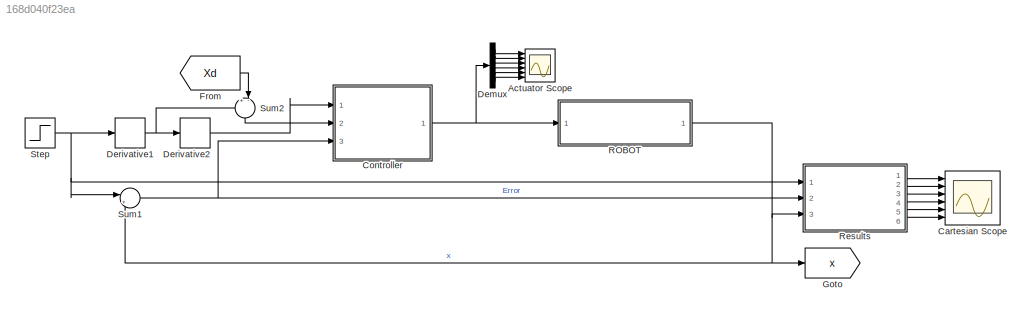
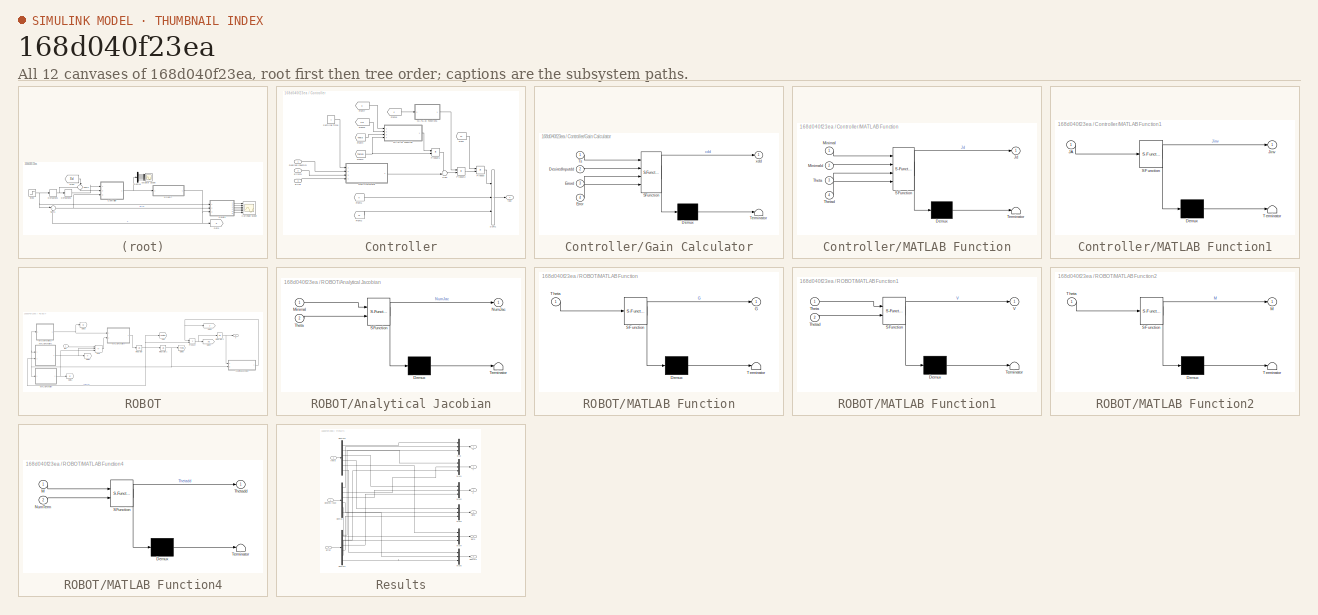
[diagram: thumbnail index - all 12 canvases of the model, root first then tree order]
MODEL slx_168d040f23ea
KIND model
CONFIG AbsTol = auto
CONFIG EnableMultiTasking = off
CONFIG FixedStep = auto
CONFIG MaxStep = auto
CONFIG MinStep = auto
CONFIG RelTol = 1e-3
CONFIG SampleTimeConstraint = Unconstrained
CONFIG SolverName = VariableStepAuto
CONFIG StartTime = 0.0
CONFIG StopTime = 10.0
BLOCK [Scope] Actuator Scope
  Floating = off
  NumInputPorts = 6
  Ports = [6]
  ScopeSpecificationString = Simulink.scopes.TimeScopeBlockCfg('CurrentConfiguration', extmgr.ConfigurationSet(extmgr.Configuration('Core','General UI',true),extmgr.Configuration('Core','Source UI',true),extmgr.Configuration('Sources','WiredSimulink',true,'DataLoggingVariableName','ScopeData1'),extmgr.Configuration('Visuals','Time Domain',true,'SerializedDisplays',{struct('MinYLimReal','-8238315.85207','MaxYLimReal','1984857....<+4950ch>
BLOCK [Scope] Cartesian Scope
  Floating = off
  NumInputPorts = 6
  Ports = [6]
  ScopeSpecificationString = Simulink.scopes.TimeScopeBlockCfg('CurrentConfiguration', extmgr.ConfigurationSet(extmgr.Configuration('Core','General UI',true),extmgr.Configuration('Core','Source UI',true),extmgr.Configuration('Sources','WiredSimulink',true),extmgr.Configuration('Visuals','Time Domain',true,'SerializedDisplays',{struct('MinYLimReal','-1.49443','MaxYLimReal','2.69443','YLabelReal','','MinYLimMag','0.00000','MaxY...<+4908ch>
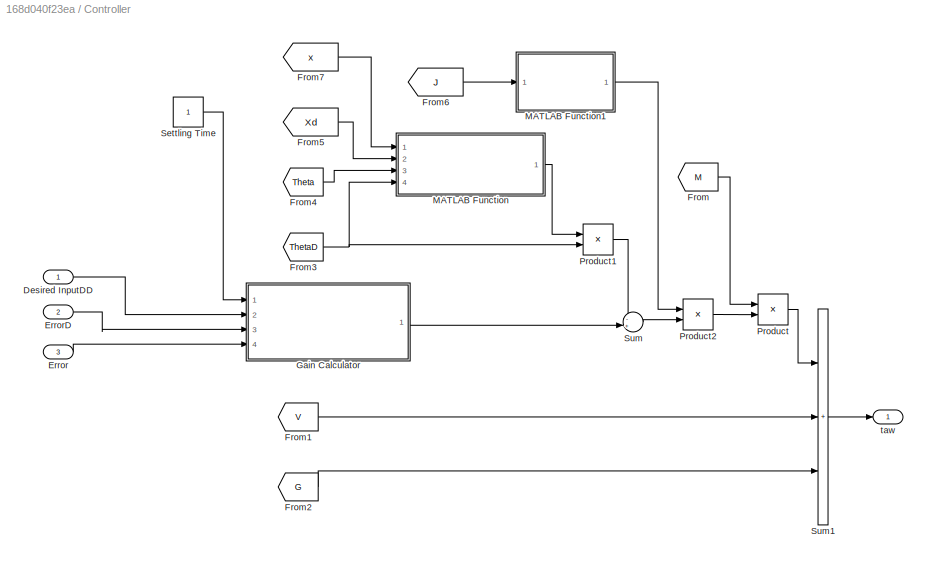
BLOCK [SubSystem] Controller
  Ports = [3, 1]
  RequestExecContextInheritance = off
BLOCK [Inport] Controller/Desired InputDD
BLOCK [Inport] Controller/Error
  Port = 3
BLOCK [Inport] Controller/ErrorD
  Port = 2
BLOCK [From] Controller/From
  GotoTag = M
  TagVisibility = global
BLOCK [From] Controller/From1
  GotoTag = V
  TagVisibility = global
BLOCK [From] Controller/From2
  GotoTag = G
  TagVisibility = global
BLOCK [From] Controller/From3
  GotoTag = ThetaD
  TagVisibility = global
BLOCK [From] Controller/From4
  GotoTag = Theta
  TagVisibility = global
BLOCK [From] Controller/From5
  GotoTag = Xd
  TagVisibility = global
BLOCK [From] Controller/From6
  GotoTag = J
  TagVisibility = global
BLOCK [From] Controller/From7
  GotoTag = x
  TagVisibility = global
BLOCK [SubSystem] Controller/Gain Calculator
  ErrorFcn = Stateflow.Translate.translate
  PermitHierarchicalResolution = ExplicitOnly
  Ports = [4, 1]
  RequestExecContextInheritance = off
  SFBlockType = MATLAB Function
  TreatAsAtomicUnit = on
BLOCK [Demux] Controller/Gain Calculator/ Demux 
  Outputs = 1
  Ports = [1, 1]
BLOCK [S-Function] Controller/Gain Calculator/ SFunction 
  EnableBusSupport = on
  FunctionName = sf_sfun
  PortCounts = [4 2]
  Ports = [4, 2]
  SFcnIsStateOwnerBlock = off
  SFunctionDeploymentMode = off
  Tag = Stateflow S-Function 9
BLOCK [Terminator] Controller/Gain Calculator/ Terminator 
BLOCK [Inport] Controller/Gain Calculator/DesiredInputdd
  Port = 2
BLOCK [Inport] Controller/Gain Calculator/Error
  Port = 4
BLOCK [Inport] Controller/Gain Calculator/Errord
  Port = 3
BLOCK [Inport] Controller/Gain Calculator/Ts
BLOCK [Outport] Controller/Gain Calculator/xdd
  VectorParamsAs1DForOutWhenUnconnected = off
BLOCK [SubSystem] Controller/MATLAB Function
  ErrorFcn = Stateflow.Translate.translate
  PermitHierarchicalResolution = ExplicitOnly
  Ports = [4, 1]
  RequestExecContextInheritance = off
  SFBlockType = MATLAB Function
  TreatAsAtomicUnit = on
BLOCK [Demux] Controller/MATLAB Function/ Demux 
  Outputs = 1
  Ports = [1, 1]
BLOCK [S-Function] Controller/MATLAB Function/ SFunction 
  EnableBusSupport = on
  FunctionName = sf_sfun
  PortCounts = [4 2]
  Ports = [4, 2]
  SFcnIsStateOwnerBlock = off
  SFunctionDeploymentMode = off
  Tag = Stateflow S-Function 7
BLOCK [Terminator] Controller/MATLAB Function/ Terminator 
BLOCK [Outport] Controller/MATLAB Function/Jd
  VectorParamsAs1DForOutWhenUnconnected = off
BLOCK [Inport] Controller/MATLAB Function/Minimal
BLOCK [Inport] Controller/MATLAB Function/Minimald
  Port = 2
BLOCK [Inport] Controller/MATLAB Function/Theta
  Port = 3
BLOCK [Inport] Controller/MATLAB Function/Thetad
  Port = 4
BLOCK [SubSystem] Controller/MATLAB Function1
  ErrorFcn = Stateflow.Translate.translate
  PermitHierarchicalResolution = ExplicitOnly
  Ports = [1, 1]
  RequestExecContextInheritance = off
  SFBlockType = MATLAB Function
  TreatAsAtomicUnit = on
BLOCK [Demux] Controller/MATLAB Function1/ Demux 
  Outputs = 1
  Ports = [1, 1]
BLOCK [S-Function] Controller/MATLAB Function1/ SFunction 
  EnableBusSupport = on
  FunctionName = sf_sfun
  PortCounts = [1 2]
  Ports = [1, 2]
  SFcnIsStateOwnerBlock = off
  SFunctionDeploymentMode = off
  Tag = Stateflow S-Function 8
BLOCK [Terminator] Controller/MATLAB Function1/ Terminator 
BLOCK [Inport] Controller/MATLAB Function1/JA
BLOCK [Outport] Controller/MATLAB Function1/Jinv
  VectorParamsAs1DForOutWhenUnconnected = off
BLOCK [Product] Controller/Product
  Multiplication = Matrix(*)
  Ports = [2, 1]
BLOCK [Product] Controller/Product1
  Multiplication = Matrix(*)
  Ports = [2, 1]
BLOCK [Product] Controller/Product2
  Multiplication = Matrix(*)
  Ports = [2, 1]
BLOCK [Constant] Controller/Settling Time
BLOCK [Sum] Controller/Sum
  Inputs = -+|
  Ports = [2, 1]
BLOCK [Sum] Controller/Sum1
  IconShape = rectangular
  Inputs = +++
  Ports = [3, 1]
BLOCK [Outport] Controller/taw
  VectorParamsAs1DForOutWhenUnconnected = off
BLOCK [Demux] Demux
  Outputs = 6
  Ports = [1, 6]
BLOCK [Derivative] Derivative1
BLOCK [Derivative] Derivative2
BLOCK [From] From
  GotoTag = Xd
  TagVisibility = global
BLOCK [Goto] Goto
  GotoTag = x
  TagVisibility = global
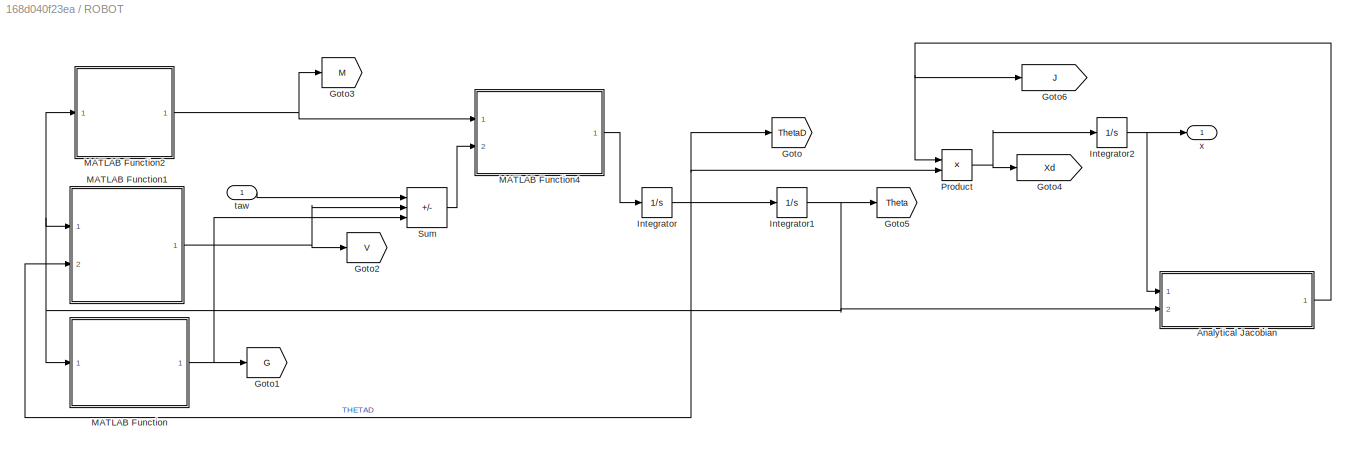
BLOCK [SubSystem] ROBOT
  Ports = [1, 1]
  RequestExecContextInheritance = off
BLOCK [SubSystem] ROBOT/Analytical Jacobian
  ErrorFcn = Stateflow.Translate.translate
  PermitHierarchicalResolution = ExplicitOnly
  Ports = [2, 1]
  RequestExecContextInheritance = off
  SFBlockType = MATLAB Function
  TreatAsAtomicUnit = on
BLOCK [Demux] ROBOT/Analytical Jacobian/ Demux 
  Outputs = 1
  Ports = [1, 1]
BLOCK [S-Function] ROBOT/Analytical Jacobian/ SFunction 
  EnableBusSupport = on
  FunctionName = sf_sfun
  PortCounts = [2 2]
  Ports = [2, 2]
  SFcnIsStateOwnerBlock = off
  SFunctionDeploymentMode = off
  Tag = Stateflow S-Function 6
BLOCK [Terminator] ROBOT/Analytical Jacobian/ Terminator 
BLOCK [Inport] ROBOT/Analytical Jacobian/Minimal
BLOCK [Outport] ROBOT/Analytical Jacobian/NumJac
  VectorParamsAs1DForOutWhenUnconnected = off
BLOCK [Inport] ROBOT/Analytical Jacobian/Theta
  Port = 2
BLOCK [Goto] ROBOT/Goto
  GotoTag = ThetaD
  TagVisibility = global
BLOCK [Goto] ROBOT/Goto1
  GotoTag = G
  TagVisibility = global
BLOCK [Goto] ROBOT/Goto2
  GotoTag = V
  TagVisibility = global
BLOCK [Goto] ROBOT/Goto3
  GotoTag = M
  TagVisibility = global
BLOCK [Goto] ROBOT/Goto4
  GotoTag = Xd
  TagVisibility = global
BLOCK [Goto] ROBOT/Goto5
  GotoTag = Theta
  TagVisibility = global
BLOCK [Goto] ROBOT/Goto6
  GotoTag = J
  TagVisibility = global
BLOCK [Integrator] ROBOT/Integrator
  InitialCondition = [0;0;0;0;0;0]
  Ports = [1, 1]
BLOCK [Integrator] ROBOT/Integrator1
  InitialCondition = [0.659733742734682;-0.837199398722719;1.88109465000067;2.99646726889027;1.04847657950238;0.858183852099329];
  Ports = [1, 1]
BLOCK [Integrator] ROBOT/Integrator2
  InitialCondition = [1.5;1.2;0.7;pi/4;pi/2;pi/4];
  Ports = [1, 1]
BLOCK [SubSystem] ROBOT/MATLAB Function
  ErrorFcn = Stateflow.Translate.translate
  PermitHierarchicalResolution = ExplicitOnly
  Ports = [1, 1]
  RequestExecContextInheritance = off
  SFBlockType = MATLAB Function
  TreatAsAtomicUnit = on
BLOCK [Demux] ROBOT/MATLAB Function/ Demux 
  Outputs = 1
  Ports = [1, 1]
BLOCK [S-Function] ROBOT/MATLAB Function/ SFunction 
  EnableBusSupport = on
  FunctionName = sf_sfun
  PortCounts = [1 2]
  Ports = [1, 2]
  SFcnIsStateOwnerBlock = off
  SFunctionDeploymentMode = off
  Tag = Stateflow S-Function 4
BLOCK [Terminator] ROBOT/MATLAB Function/ Terminator 
BLOCK [Outport] ROBOT/MATLAB Function/G
  VectorParamsAs1DForOutWhenUnconnected = off
BLOCK [Inport] ROBOT/MATLAB Function/Theta
BLOCK [SubSystem] ROBOT/MATLAB Function1
  ErrorFcn = Stateflow.Translate.translate
  PermitHierarchicalResolution = ExplicitOnly
  Ports = [2, 1]
  RequestExecContextInheritance = off
  SFBlockType = MATLAB Function
  TreatAsAtomicUnit = on
BLOCK [Demux] ROBOT/MATLAB Function1/ Demux 
  Outputs = 1
  Ports = [1, 1]
BLOCK [S-Function] ROBOT/MATLAB Function1/ SFunction 
  EnableBusSupport = on
  FunctionName = sf_sfun
  PortCounts = [2 2]
  Ports = [2, 2]
  SFcnIsStateOwnerBlock = off
  SFunctionDeploymentMode = off
  Tag = Stateflow S-Function 1
BLOCK [Terminator] ROBOT/MATLAB Function1/ Terminator 
BLOCK [Inport] ROBOT/MATLAB Function1/Theta
BLOCK [Inport] ROBOT/MATLAB Function1/Thetad
  Port = 2
BLOCK [Outport] ROBOT/MATLAB Function1/V
  VectorParamsAs1DForOutWhenUnconnected = off
BLOCK [SubSystem] ROBOT/MATLAB Function2
  ErrorFcn = Stateflow.Translate.translate
  PermitHierarchicalResolution = ExplicitOnly
  Ports = [1, 1]
  RequestExecContextInheritance = off
  SFBlockType = MATLAB Function
  TreatAsAtomicUnit = on
BLOCK [Demux] ROBOT/MATLAB Function2/ Demux 
  Outputs = 1
  Ports = [1, 1]
BLOCK [S-Function] ROBOT/MATLAB Function2/ SFunction 
  EnableBusSupport = on
  FunctionName = sf_sfun
  PortCounts = [1 2]
  Ports = [1, 2]
  SFcnIsStateOwnerBlock = off
  SFunctionDeploymentMode = off
  Tag = Stateflow S-Function 3
BLOCK [Terminator] ROBOT/MATLAB Function2/ Terminator 
BLOCK [Outport] ROBOT/MATLAB Function2/M
  VectorParamsAs1DForOutWhenUnconnected = off
BLOCK [Inport] ROBOT/MATLAB Function2/Theta
BLOCK [SubSystem] ROBOT/MATLAB Function4
  ErrorFcn = Stateflow.Translate.translate
  PermitHierarchicalResolution = ExplicitOnly
  Ports = [2, 1]
  RequestExecContextInheritance = off
  SFBlockType = MATLAB Function
  TreatAsAtomicUnit = on
BLOCK [Demux] ROBOT/MATLAB Function4/ Demux 
  Outputs = 1
  Ports = [1, 1]
BLOCK [S-Function] ROBOT/MATLAB Function4/ SFunction 
  EnableBusSupport = on
  FunctionName = sf_sfun
  PortCounts = [2 2]
  Ports = [2, 2]
  SFcnIsStateOwnerBlock = off
  SFunctionDeploymentMode = off
  Tag = Stateflow S-Function 2
BLOCK [Terminator] ROBOT/MATLAB Function4/ Terminator 
BLOCK [Inport] ROBOT/MATLAB Function4/M
BLOCK [Inport] ROBOT/MATLAB Function4/NumTerm
  Port = 2
BLOCK [Outport] ROBOT/MATLAB Function4/Thetadd
  VectorParamsAs1DForOutWhenUnconnected = off
BLOCK [Product] ROBOT/Product
  Multiplication = Matrix(*)
  Ports = [2, 1]
BLOCK [Sum] ROBOT/Sum
  IconShape = rectangular
  Inputs = +--
  Ports = [3, 1]
BLOCK [Inport] ROBOT/taw
BLOCK [Outport] ROBOT/x
  VectorParamsAs1DForOutWhenUnconnected = off
BLOCK [SubSystem] Results
  Ports = [3, 6]
  RequestExecContextInheritance = off
BLOCK [Outport] Results/Alpha
  Port = 4
  VectorParamsAs1DForOutWhenUnconnected = off
BLOCK [Outport] Results/Beta
  Port = 5
  VectorParamsAs1DForOutWhenUnconnected = off
BLOCK [Demux] Results/Demux
  Outputs = 6
  Ports = [1, 6]
BLOCK [Demux] Results/Demux1
  Outputs = 6
  Ports = [1, 6]
BLOCK [Demux] Results/Demux2
  Outputs = 6
  Ports = [1, 6]
BLOCK [Inport] Results/Desired Input
BLOCK [Inport] Results/Error
  Port = 2
BLOCK [Outport] Results/Gamma
  Port = 6
  VectorParamsAs1DForOutWhenUnconnected = off
BLOCK [Mux] Results/Mux
  DisplayOption = bar
  Inputs = 3
  Ports = [3, 1]
BLOCK [Mux] Results/Mux1
  DisplayOption = bar
  Inputs = 3
  Ports = [3, 1]
BLOCK [Mux] Results/Mux2
  DisplayOption = bar
  Inputs = 3
  Ports = [3, 1]
BLOCK [Mux] Results/Mux3
  DisplayOption = bar
  Inputs = 3
  Ports = [3, 1]
BLOCK [Mux] Results/Mux4
  DisplayOption = bar
  Inputs = 3
  Ports = [3, 1]
BLOCK [Mux] Results/Mux5
  DisplayOption = bar
  Inputs = 3
  Ports = [3, 1]
BLOCK [Outport] Results/X
  VectorParamsAs1DForOutWhenUnconnected = off
BLOCK [Outport] Results/Y
  Port = 2
  VectorParamsAs1DForOutWhenUnconnected = off
BLOCK [Outport] Results/Z
  Port = 3
  VectorParamsAs1DForOutWhenUnconnected = off
BLOCK [Inport] Results/theta
  Port = 3
BLOCK [Step] Step
  After = [0.6;0.6;1.5;pi/6;pi/4;pi/3];
  Before = [0.5;0.5;1;pi/4;pi/2;pi/4];
  SampleTime = 0
  Time = 0
BLOCK [Sum] Sum1
  Inputs = |+-
  Ports = [2, 1]
BLOCK [Sum] Sum2
  Inputs = +-|
  NameLocation = left
  Ports = [2, 1]
LINE Controller/Desired InputDD:1 -> Controller/Gain Calculator:2
LINE Controller/Error:1 -> Controller/Gain Calculator:4
LINE Controller/ErrorD:1 -> Controller/Gain Calculator:3
LINE Controller/From1:1 -> Controller/Sum1:2
LINE Controller/From2:1 -> Controller/Sum1:3
NET Controller/From3:1 -> Controller/MATLAB Function:4, Controller/Product1:2
LINE Controller/From4:1 -> Controller/MATLAB Function:3
LINE Controller/From5:1 -> Controller/MATLAB Function:2
LINE Controller/From6:1 -> Controller/MATLAB Function1:1
LINE Controller/From7:1 -> Controller/MATLAB Function:1
LINE Controller/From:1 -> Controller/Product:1
LINE Controller/Gain Calculator:1 -> Controller/Sum:2
LINE Controller/MATLAB Function1:1 -> Controller/Product2:1
LINE Controller/MATLAB Function:1 -> Controller/Product1:1
LINE Controller/Product1:1 -> Controller/Sum:1
LINE Controller/Product2:1 -> Controller/Product:2
LINE Controller/Product:1 -> Controller/Sum1:1
LINE Controller/Settling Time:1 -> Controller/Gain Calculator:1
LINE Controller/Sum1:1 -> Controller/taw:1
LINE Controller/Sum:1 -> Controller/Product2:2
NET Controller:1 -> Demux:1, ROBOT:1
LINE Demux:1 -> Actuator Scope:1
LINE Demux:2 -> Actuator Scope:2
LINE Demux:3 -> Actuator Scope:3
LINE Demux:4 -> Actuator Scope:4
LINE Demux:5 -> Actuator Scope:5
LINE Demux:6 -> Actuator Scope:6
NET Derivative1:1 -> Derivative2:1, Sum2:1
LINE Derivative2:1 -> Controller:1
LINE From:1 -> Sum2:2
NET ROBOT/Analytical Jacobian:1 -> ROBOT/Goto6:1, ROBOT/Product:1
NET ROBOT/Integrator1:1 -> ROBOT/Analytical Jacobian:2, ROBOT/Goto5:1, ROBOT/MATLAB Function1:1, ROBOT/MATLAB Function2:1, ROBOT/MATLAB Function:1
NET ROBOT/Integrator2:1 -> ROBOT/Analytical Jacobian:1, ROBOT/x:1
NET ROBOT/Integrator:1 -> ROBOT/Goto:1, ROBOT/Integrator1:1, ROBOT/MATLAB Function1:2, ROBOT/Product:2
NET ROBOT/MATLAB Function1:1 -> ROBOT/Goto2:1, ROBOT/Sum:2
NET ROBOT/MATLAB Function2:1 -> ROBOT/Goto3:1, ROBOT/MATLAB Function4:1
LINE ROBOT/MATLAB Function4:1 -> ROBOT/Integrator:1
NET ROBOT/MATLAB Function:1 -> ROBOT/Goto1:1, ROBOT/Sum:3
NET ROBOT/Product:1 -> ROBOT/Goto4:1, ROBOT/Integrator2:1
LINE ROBOT/Sum:1 -> ROBOT/MATLAB Function4:2
LINE ROBOT/taw:1 -> ROBOT/Sum:1
NET ROBOT:1 -> Goto:1, Results:3, Sum1:2
LINE Results/Demux1:1 -> Results/Mux:3
LINE Results/Demux1:2 -> Results/Mux1:3
LINE Results/Demux1:3 -> Results/Mux2:3
LINE Results/Demux1:4 -> Results/Mux3:3
LINE Results/Demux1:5 -> Results/Mux4:3
LINE Results/Demux1:6 -> Results/Mux5:3
LINE Results/Demux2:1 -> Results/Mux:1
LINE Results/Demux2:2 -> Results/Mux1:1
LINE Results/Demux2:3 -> Results/Mux2:1
LINE Results/Demux2:4 -> Results/Mux3:1
LINE Results/Demux2:5 -> Results/Mux4:1
LINE Results/Demux2:6 -> Results/Mux5:1
LINE Results/Demux:1 -> Results/Mux:2
LINE Results/Demux:2 -> Results/Mux1:2
LINE Results/Demux:3 -> Results/Mux2:2
LINE Results/Demux:4 -> Results/Mux3:2
LINE Results/Demux:5 -> Results/Mux4:2
LINE Results/Demux:6 -> Results/Mux5:2
LINE Results/Desired Input:1 -> Results/Demux:1
LINE Results/Error:1 -> Results/Demux1:1
LINE Results/Mux1:1 -> Results/Y:1
LINE Results/Mux2:1 -> Results/Z:1
LINE Results/Mux3:1 -> Results/Alpha:1
LINE Results/Mux4:1 -> Results/Beta:1
LINE Results/Mux5:1 -> Results/Gamma:1
LINE Results/Mux:1 -> Results/X:1
LINE Results/theta:1 -> Results/Demux2:1
LINE Results:1 -> Cartesian Scope:1
LINE Results:2 -> Cartesian Scope:2
LINE Results:3 -> Cartesian Scope:3
LINE Results:4 -> Cartesian Scope:4
LINE Results:5 -> Cartesian Scope:5
LINE Results:6 -> Cartesian Scope:6
NET Step:1 -> Derivative1:1, Results:1, Sum1:1
NET Sum1:1 -> Controller:3, Results:2
LINE Sum2:1 -> Controller:2
note: NET lines group one-source signal fan-out (src -> all destinations, sorted); 1:1 wires keep LINE
CHART ROBOT/MATLAB Function1 states=1 transitions=1
  STATE_LABEL 'eML_blk_kernel()'
  STATE_LABEL 'SCRIPT:\nfunction V = NumV(Theta,Thetad)\nt1=Theta(1);\nt2=Theta(2);\nt3=Theta(3);\nt4=Theta(4);\nt5=Theta(5);\nt6=Theta(6);\ntd1=Thetad(1);\ntd2=Thetad(2);\ntd3=Thetad(3);\ntd4=Thetad(4);\ntd5=Thetad(5);\ntd6=Thetad(6);\n\nL1=0.1025;\nL2=0.408;\nL3=0.376;\nL4=0.1025; \nL5=0.1025;\n\nV=[td2*(td1*(25109.9375*sin(2.0*t2 + 2.0*t3 + 2.0*t4) + 1339251.84*sin(2.0*t2 + t3) + 184221.2*sin(2.0*t2 + 2.0*t3 + t4) + 1047890.82668...<+3608ch>'
CHART ROBOT/MATLAB Function4 states=1 transitions=1
  STATE_LABEL 'eML_blk_kernel()'
  STATE_LABEL 'SCRIPT:\nfunction Thetadd = Response(M,NumTerm)\nThetadd=M\\NumTerm;\n'
CHART ROBOT/MATLAB Function2 states=1 transitions=1
  STATE_LABEL 'eML_blk_kernel()'
  STATE_LABEL 'SCRIPT:\nfunction M = NumM(Theta)\nt1=Theta(1);\nt2=Theta(2);\nt3=Theta(3);\nt4=Theta(4);\nt5=Theta(5);\nt6=Theta(6);\n\nL1=0.1025;\nL2=0.408;\nL3=0.376;\nL4=0.1025; \nL5=0.1025;\n\n\nM=zeros(6);\nM(1)=(999498*cos(t3 + t4))/5 - (9799*L4)/40 - (33481296*cos(2*t2 + t3))/25 -...\n    (30203396714246934648101547*cos(2*t2))/28823037615171174400 - (401759*cos(2*t2 + 2*t3 + 2*t4))/16 -...\n    (15427656*cos(2*t2 + 2*t3))/2...<+3608ch>'
CHART ROBOT/MATLAB Function states=1 transitions=1
  STATE_LABEL 'eML_blk_kernel()'
  STATE_LABEL 'SCRIPT:\nfunction G = NumG(Theta)\nt1=Theta(1);\nt2=Theta(2);\nt3=Theta(3);\nt4=Theta(4);\nt5=Theta(5);\nt6=Theta(6);\n\nL1=0.1025;\nL2=0.408;\nL3=0.376;\nL4=0.1025; \nL5=0.1025;\n\nG=[0\n   5.8614750000000004348521542851813*L3*sin(t2 + t3 + t4 + t5) - 32201.128800000001308035280089825*sin(t2 + t3) - 50391.223200000000709678715793416*sin(t2) - 4806.4095000000003565787665138487*sin(t2 + t3 + t4) - 37.1308500000000...<+803ch>'
CHART ROBOT/Analytical Jacobian states=1 transitions=1
  STATE_LABEL 'eML_blk_kernel()'
  STATE_LABEL 'SCRIPT:\nfunction NumJac = AnalyticalJac(Minimal,Theta)\nalpha=Minimal(4);\nbeta=Minimal(5);\ngamma=Minimal(6);\nt1=Theta(1);\nt2=Theta(2);\nt3=Theta(3);\nt4=Theta(4);\nt5=Theta(5);\nt6=Theta(6);\n\nNumJac = [(281*cos(t1))/2 + 94*cos(t1)*cos(t5) + 408*sin(t1)*sin(t2) + 376*cos(t2)*sin(t1)*sin(t3) + 376*cos(t3)*sin(t1)*sin(t2) + (205*cos(t2)*cos(t3)*sin(t1)*sin(t4))/2 + (205*cos(t2)*cos(t4)*sin(t1)*sin(t3))/2 ...<+3608ch>'
CHART Controller/MATLAB Function states=1 transitions=1
  STATE_LABEL 'eML_blk_kernel()'
  STATE_LABEL 'SCRIPT:\nfunction Jd = JdAnalytical(Minimal,Minimald,Theta,Thetad)\nalpha=Minimal(4);\nbeta=Minimal(5);\ngamma=Minimal(6);\nalphad=Minimald(4);\nbetad=Minimald(5);\ngammad=Minimald(6);\nt1=Theta(1);\nt2=Theta(2);\nt3=Theta(3);\nt4=Theta(4);\nt5=Theta(5);\nt6=Theta(6);\ntd1=Thetad(1);\ntd2=Thetad(2);\ntd3=Thetad(3);\ntd4=Thetad(4);\ntd5=Thetad(5);\ntd6=Thetad(6);\n\nJd = [td2*(408*cos(t2)*sin(t1) - 376*sin(t1)*sin(t2)*...<+3608ch>'
CHART Controller/MATLAB Function1 states=1 transitions=1
  STATE_LABEL 'eML_blk_kernel()'
  STATE_LABEL 'SCRIPT:\nfunction Jinv = JacAnalyticalInv(JA)\n\nJinv=JA^(-1);\n'
CHART Controller/Gain Calculator states=1 transitions=1
  STATE_LABEL 'eML_blk_kernel()'
  STATE_LABEL 'SCRIPT:\nfunction xdd = GainCalc(Ts,DesiredInputdd,Errord,Error)\nZETTA=1;\n\nOMEGA=4/ZETTA/Ts;\nKp=diag(OMEGA^2*ones(6,1));\nKd=diag(2*ZETTA*OMEGA*ones(6,1));\n\nxdd=DesiredInputdd+Kd*Errord+Kp*Error;\n'
CHART  states=0 transitions=0
CHART  states=0 transitions=0
CHART  states=0 transitions=0
CHART  states=0 transitions=0
CHART  states=0 transitions=0
CHART  states=0 transitions=0
CHART  states=0 transitions=0
CHART  states=0 transitions=0
